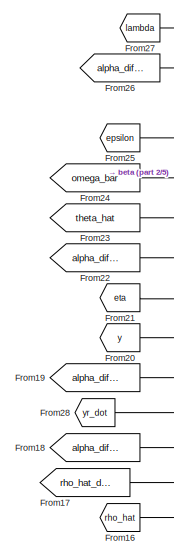
[diagram: root canvas - part 1/5, top left region]
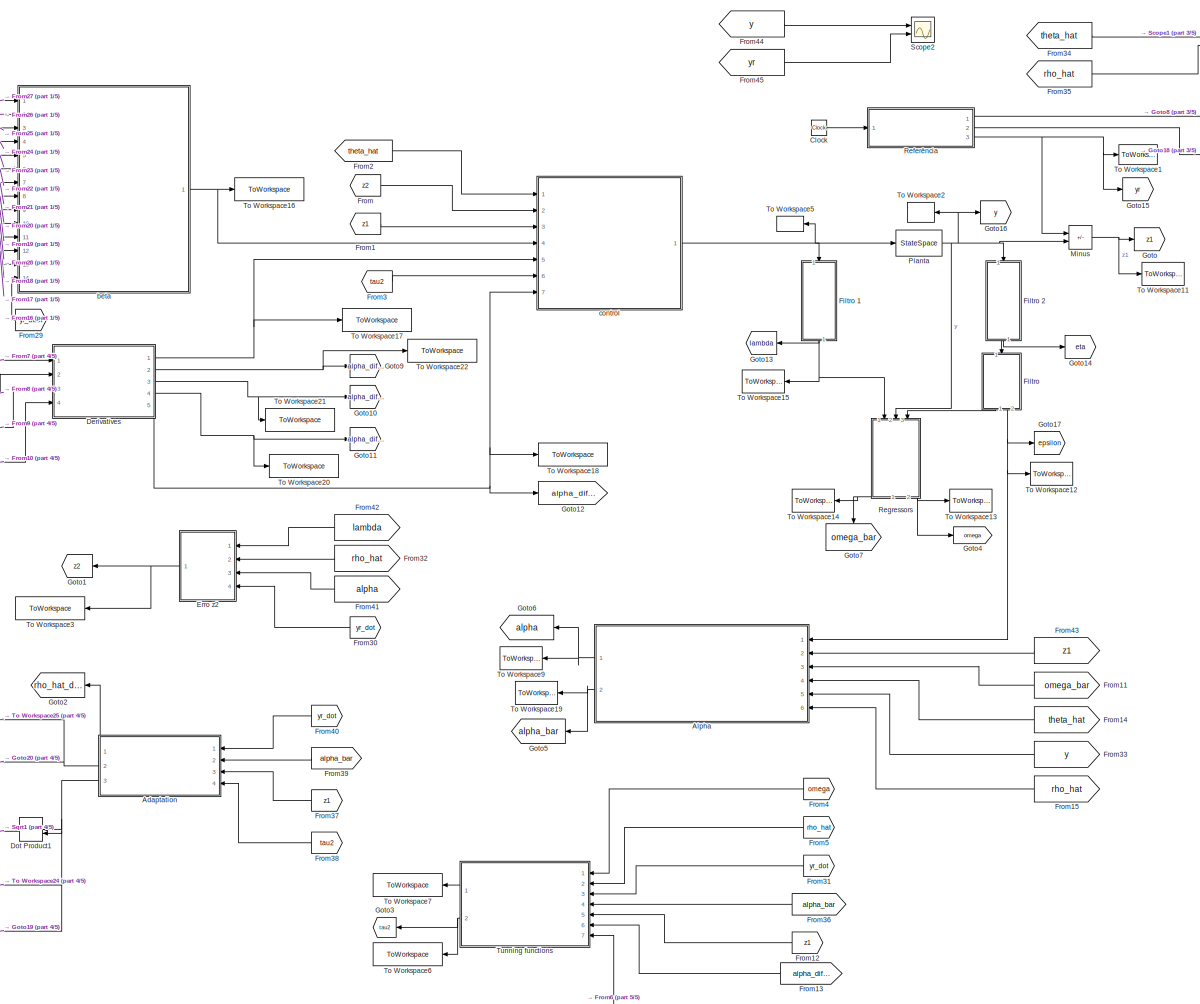
[diagram: root canvas - part 2/5, center side, full height]
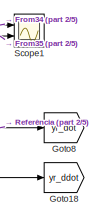
[diagram: root canvas - part 3/5, top right region]
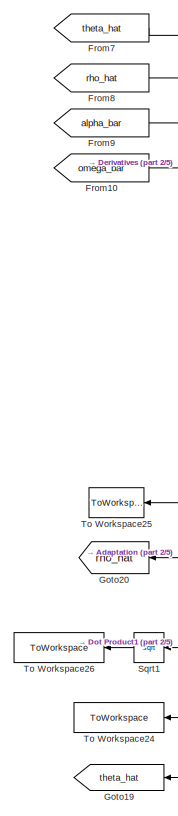
[diagram: root canvas - part 4/5, middle left region]
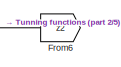
[diagram: root canvas - part 5/5, bottom right region]
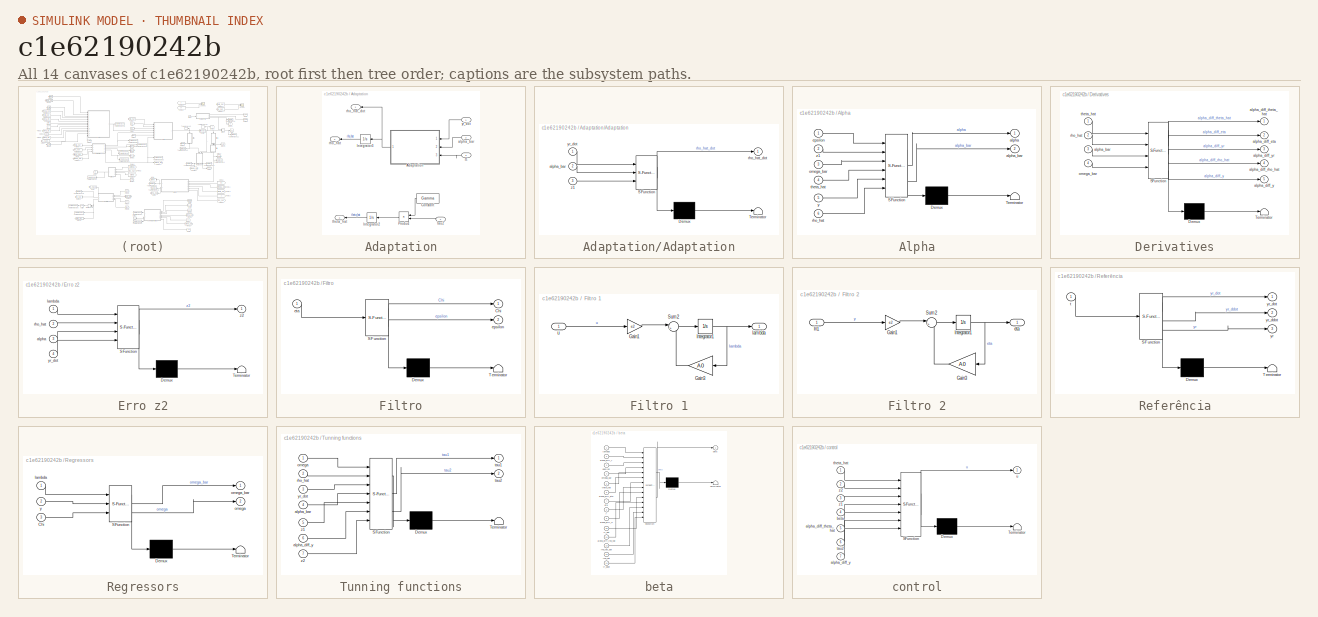
[diagram: thumbnail index - all 14 canvases of the model, root first then tree order]
MODEL slx_c1e62190242b
KIND model
CONFIG AbsTol = auto
CONFIG EnableMultiTasking = off
CONFIG FixedStep = 1e-3
CONFIG MaxStep = auto
CONFIG MinStep = auto
CONFIG RelTol = 1e-3
CONFIG SampleTimeConstraint = Unconstrained
CONFIG SolverName = VariableStepAuto
CONFIG StartTime = 0.0
CONFIG StopTime = 40
BLOCK [SubSystem] Adaptation
  Ports = [4, 3]
  RequestExecContextInheritance = off
BLOCK [SubSystem] Adaptation/Adaptation
  ErrorFcn = Stateflow.Translate.translate
  PermitHierarchicalResolution = ExplicitOnly
  Ports = [3, 1]
  RequestExecContextInheritance = off
  SFBlockType = MATLAB Function
  TreatAsAtomicUnit = on
BLOCK [Demux] Adaptation/Adaptation/ Demux 
  Outputs = 1
  Ports = [1, 1]
BLOCK [S-Function] Adaptation/Adaptation/ SFunction 
  EnableBusSupport = on
  FunctionName = sf_sfun
  Parameters = gamma,kp
  PortCounts = [3 2]
  Ports = [3, 2]
  SFcnIsStateOwnerBlock = off
  SFunctionDeploymentMode = off
  Tag = Stateflow S-Function 12
BLOCK [Terminator] Adaptation/Adaptation/ Terminator 
BLOCK [Inport] Adaptation/Adaptation/alpha_bar
  Port = 2
BLOCK [Outport] Adaptation/Adaptation/rho_hat_dot
BLOCK [Inport] Adaptation/Adaptation/yr_dot
BLOCK [Inport] Adaptation/Adaptation/z1
  Port = 3
BLOCK [Constant] Adaptation/Constant
  Value = Gamma
  VectorParams1D = off
BLOCK [Integrator] Adaptation/Integrator2
  InitialCondition = theta0
  Ports = [1, 1]
BLOCK [Integrator] Adaptation/Integrator3
  InitialCondition = rho0
  Ports = [1, 1]
BLOCK [Product] Adaptation/Product
  Multiplication = Matrix(*)
  Ports = [2, 1]
BLOCK [Inport] Adaptation/alpha_bar
  Port = 2
BLOCK [Outport] Adaptation/rho_hat
  Port = 2
BLOCK [Outport] Adaptation/rho_hat_dot
BLOCK [Inport] Adaptation/tau2
  Port = 4
BLOCK [Outport] Adaptation/theta_hat
  Port = 3
BLOCK [Inport] Adaptation/yr_dot
BLOCK [Inport] Adaptation/z1
  Port = 3
BLOCK [SubSystem] Alpha
  ErrorFcn = Stateflow.Translate.translate
  PermitHierarchicalResolution = ExplicitOnly
  Ports = [6, 2]
  RequestExecContextInheritance = off
  SFBlockType = MATLAB Function
  TreatAsAtomicUnit = on
BLOCK [Demux] Alpha/ Demux 
  Outputs = 1
  Ports = [1, 1]
BLOCK [S-Function] Alpha/ SFunction 
  EnableBusSupport = on
  FunctionName = sf_sfun
  Parameters = c1,d1
  PortCounts = [6 3]
  Ports = [6, 3]
  SFcnIsStateOwnerBlock = off
  SFunctionDeploymentMode = off
  Tag = Stateflow S-Function 1
BLOCK [Terminator] Alpha/ Terminator 
BLOCK [Outport] Alpha/alpha
BLOCK [Outport] Alpha/alpha_bar
  Port = 2
BLOCK [Inport] Alpha/epsilon
BLOCK [Inport] Alpha/omega_bar
  Port = 3
BLOCK [Inport] Alpha/rho_hat
  Port = 6
BLOCK [Inport] Alpha/theta_hat
  Port = 4
BLOCK [Inport] Alpha/y
  Port = 5
BLOCK [Inport] Alpha/z1
  Port = 2
BLOCK [Clock] Clock
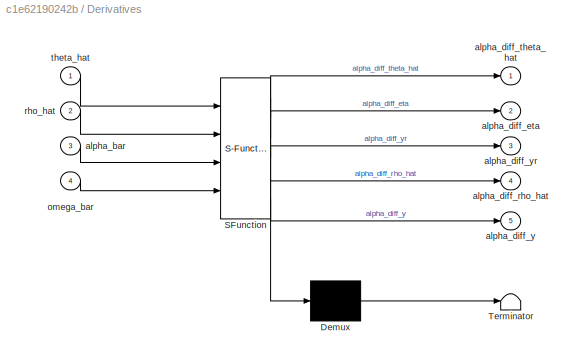
BLOCK [SubSystem] Derivatives
  ErrorFcn = Stateflow.Translate.translate
  PermitHierarchicalResolution = ExplicitOnly
  Ports = [4, 5]
  RequestExecContextInheritance = off
  SFBlockType = MATLAB Function
  TreatAsAtomicUnit = on
BLOCK [Demux] Derivatives/ Demux 
  Outputs = 1
  Ports = [1, 1]
BLOCK [S-Function] Derivatives/ SFunction 
  EnableBusSupport = on
  FunctionName = sf_sfun
  Parameters = A0,c1,d1,e2
  PortCounts = [4 6]
  Ports = [4, 6]
  SFcnIsStateOwnerBlock = off
  SFunctionDeploymentMode = off
  Tag = Stateflow S-Function 5
BLOCK [Terminator] Derivatives/ Terminator 
BLOCK [Inport] Derivatives/alpha_bar
  Port = 3
BLOCK [Outport] Derivatives/alpha_diff_eta
  Port = 2
BLOCK [Outport] Derivatives/alpha_diff_rho_hat
  Port = 4
BLOCK [Outport] Derivatives/alpha_diff_theta_hat
BLOCK [Outport] Derivatives/alpha_diff_y
  Port = 5
BLOCK [Outport] Derivatives/alpha_diff_yr
  Port = 3
BLOCK [Inport] Derivatives/omega_bar
  Port = 4
BLOCK [Inport] Derivatives/rho_hat
  Port = 2
BLOCK [Inport] Derivatives/theta_hat
BLOCK [DotProduct] Dot Product1
  OutDataTypeStr = Inherit: Inherit via internal rule
BLOCK [SubSystem] Erro z2
  ErrorFcn = Stateflow.Translate.translate
  PermitHierarchicalResolution = ExplicitOnly
  Ports = [4, 1]
  RequestExecContextInheritance = off
  SFBlockType = MATLAB Function
  TreatAsAtomicUnit = on
BLOCK [Demux] Erro z2/ Demux 
  Outputs = 1
  Ports = [1, 1]
BLOCK [S-Function] Erro z2/ SFunction 
  EnableBusSupport = on
  FunctionName = sf_sfun
  PortCounts = [4 2]
  Ports = [4, 2]
  SFcnIsStateOwnerBlock = off
  SFunctionDeploymentMode = off
  Tag = Stateflow S-Function 11
BLOCK [Terminator] Erro z2/ Terminator 
BLOCK [Inport] Erro z2/alpha
  Port = 3
BLOCK [Inport] Erro z2/lambda
BLOCK [Inport] Erro z2/rho_hat
  Port = 2
BLOCK [Inport] Erro z2/yr_dot
  Port = 4
BLOCK [Outport] Erro z2/z2
BLOCK [SubSystem] Filtro
  ErrorFcn = Stateflow.Translate.translate
  NameLocation = left
  PermitHierarchicalResolution = ExplicitOnly
  Ports = [1, 2]
  RequestExecContextInheritance = off
  SFBlockType = MATLAB Function
  TreatAsAtomicUnit = on
BLOCK [SubSystem] Filtro 1
  NameLocation = left
  Ports = [1, 1]
  RequestExecContextInheritance = off
BLOCK [Gain] Filtro 1/Gain1
  Gain = e2
BLOCK [Gain] Filtro 1/Gain3
  Gain = A0
  Multiplication = Matrix(K*u) (u vector)
BLOCK [Integrator] Filtro 1/Integrator1
  Ports = [1, 1]
BLOCK [Sum] Filtro 1/Sum2
  Inputs = |++
  Ports = [2, 1]
BLOCK [Outport] Filtro 1/lambda
  IconDisplay = Signal name
BLOCK [Inport] Filtro 1/u
  IconDisplay = Signal name
BLOCK [SubSystem] Filtro 2
  NameLocation = left
  Ports = [1, 1]
  RequestExecContextInheritance = off
BLOCK [Gain] Filtro 2/Gain1
  Gain = e2
BLOCK [Gain] Filtro 2/Gain3
  Gain = A0
  Multiplication = Matrix(K*u) (u vector)
BLOCK [Inport] Filtro 2/In1
  IconDisplay = Signal name
BLOCK [Integrator] Filtro 2/Integrator1
  Ports = [1, 1]
BLOCK [Sum] Filtro 2/Sum2
  Inputs = |++
  Ports = [2, 1]
BLOCK [Outport] Filtro 2/eta
  IconDisplay = Signal name
BLOCK [Demux] Filtro/ Demux 
  Outputs = 1
  Ports = [1, 1]
BLOCK [S-Function] Filtro/ SFunction 
  EnableBusSupport = on
  FunctionName = sf_sfun
  Parameters = A0
  PortCounts = [1 3]
  Ports = [1, 3]
  SFcnIsStateOwnerBlock = off
  SFunctionDeploymentMode = off
  Tag = Stateflow S-Function 3
BLOCK [Terminator] Filtro/ Terminator 
BLOCK [Outport] Filtro/Chi
BLOCK [Outport] Filtro/epsilon
  Port = 2
BLOCK [Inport] Filtro/eta
BLOCK [From] From
  GotoTag = z2
BLOCK [From] From1
  GotoTag = z1
BLOCK [From] From10
  GotoTag = omega_bar
BLOCK [From] From11
  GotoTag = omega_bar
  NameLocation = top
BLOCK [From] From12
  GotoTag = z1
  NameLocation = top
BLOCK [From] From13
  GotoTag = alpha_diff_y
  NameLocation = top
BLOCK [From] From14
  GotoTag = theta_hat
  NameLocation = top
BLOCK [From] From15
  GotoTag = rho_hat
  NameLocation = top
BLOCK [From] From16
  GotoTag = rho_hat
BLOCK [From] From17
  GotoTag = rho_hat_dot
BLOCK [From] From18
  GotoTag = alpha_diff_rho_hat
BLOCK [From] From19
  GotoTag = alpha_diff_yr
BLOCK [From] From2
  GotoTag = theta_hat
BLOCK [From] From20
  GotoTag = y
BLOCK [From] From21
  GotoTag = eta
BLOCK [From] From22
  GotoTag = alpha_diff_eta
BLOCK [From] From23
  GotoTag = theta_hat
BLOCK [From] From24
  GotoTag = omega_bar
BLOCK [From] From25
  GotoTag = epsilon
BLOCK [From] From26
  GotoTag = alpha_diff_y
BLOCK [From] From27
  GotoTag = lambda
BLOCK [From] From28
  GotoTag = yr_dot
BLOCK [From] From29
  GotoTag = yr_ddot
BLOCK [From] From3
  GotoTag = tau2
BLOCK [From] From30
  GotoTag = yr_dot
BLOCK [From] From31
  GotoTag = yr_dot
BLOCK [From] From32
  GotoTag = rho_hat
  NameLocation = top
BLOCK [From] From33
  GotoTag = y
  NameLocation = top
BLOCK [From] From34
  GotoTag = theta_hat
  NameLocation = top
BLOCK [From] From35
  GotoTag = rho_hat
  NameLocation = top
BLOCK [From] From36
  GotoTag = alpha_bar
  NameLocation = top
BLOCK [From] From37
  GotoTag = z1
  NameLocation = top
BLOCK [From] From38
  GotoTag = tau2
  NameLocation = top
BLOCK [From] From39
  GotoTag = alpha_bar
  NameLocation = top
BLOCK [From] From4
  GotoTag = omega
  NameLocation = top
BLOCK [From] From40
  GotoTag = yr_dot
  NameLocation = top
BLOCK [From] From41
  GotoTag = alpha
  NameLocation = top
BLOCK [From] From42
  GotoTag = lambda
  NameLocation = top
BLOCK [From] From43
  GotoTag = z1
  NameLocation = top
BLOCK [From] From44
  GotoTag = y
  NameLocation = top
BLOCK [From] From45
  GotoTag = yr
  NameLocation = top
BLOCK [From] From5
  GotoTag = rho_hat
  NameLocation = top
BLOCK [From] From6
  GotoTag = z2
  NameLocation = top
BLOCK [From] From7
  GotoTag = theta_hat
BLOCK [From] From8
  GotoTag = rho_hat
BLOCK [From] From9
  GotoTag = alpha_bar
BLOCK [Goto] Goto
  GotoTag = z1
BLOCK [Goto] Goto1
  GotoTag = z2
BLOCK [Goto] Goto10
  GotoTag = alpha_diff_yr
BLOCK [Goto] Goto11
  GotoTag = alpha_diff_rho_hat
BLOCK [Goto] Goto12
  GotoTag = alpha_diff_y
BLOCK [Goto] Goto13
  GotoTag = lambda
BLOCK [Goto] Goto14
  GotoTag = eta
BLOCK [Goto] Goto15
  GotoTag = yr
BLOCK [Goto] Goto16
  GotoTag = y
BLOCK [Goto] Goto17
  GotoTag = epsilon
BLOCK [Goto] Goto18
  GotoTag = yr_ddot
BLOCK [Goto] Goto19
  GotoTag = theta_hat
BLOCK [Goto] Goto2
  GotoTag = rho_hat_dot
BLOCK [Goto] Goto20
  GotoTag = rho_hat
BLOCK [Goto] Goto3
  GotoTag = tau2
BLOCK [Goto] Goto4
  GotoTag = omega
  NameLocation = top
BLOCK [Goto] Goto5
  GotoTag = alpha_bar
BLOCK [Goto] Goto6
  GotoTag = alpha
BLOCK [Goto] Goto7
  GotoTag = omega_bar
  NameLocation = right
BLOCK [Goto] Goto8
  GotoTag = yr_dot
BLOCK [Goto] Goto9
  GotoTag = alpha_diff_eta
BLOCK [Sum] Minus
  IconShape = rectangular
  Inputs = -+
  Ports = [2, 1]
BLOCK [StateSpace] Planta
  A = ap
  B = bp
  C = cp
  D = dp
  InitialCondition = x0p
  Ports = [1, 1]
BLOCK [SubSystem] Referência
  ErrorFcn = Stateflow.Translate.translate
  NameLocation = top
  PermitHierarchicalResolution = ExplicitOnly
  Ports = [1, 3]
  RequestExecContextInheritance = off
  SFBlockType = MATLAB Function
  TreatAsAtomicUnit = on
BLOCK [Demux] Referência/ Demux 
  Outputs = 1
  Ports = [1, 1]
BLOCK [S-Function] Referência/ SFunction 
  EnableBusSupport = on
  FunctionName = sf_sfun
  PortCounts = [1 4]
  Ports = [1, 4]
  SFcnIsStateOwnerBlock = off
  SFunctionDeploymentMode = off
  Tag = Stateflow S-Function 10
BLOCK [Terminator] Referência/ Terminator 
BLOCK [Inport] Referência/t
BLOCK [Outport] Referência/yr
  Port = 3
BLOCK [Outport] Referência/yr_ddot
  Port = 2
BLOCK [Outport] Referência/yr_dot
BLOCK [SubSystem] Regressors
  ErrorFcn = Stateflow.Translate.translate
  NameLocation = left
  PermitHierarchicalResolution = ExplicitOnly
  Ports = [3, 2]
  RequestExecContextInheritance = off
  SFBlockType = MATLAB Function
  TreatAsAtomicUnit = on
BLOCK [Demux] Regressors/ Demux 
  Outputs = 1
  Ports = [1, 1]
BLOCK [S-Function] Regressors/ SFunction 
  EnableBusSupport = on
  FunctionName = sf_sfun
  Parameters = e1
  PortCounts = [3 3]
  Ports = [3, 3]
  SFcnIsStateOwnerBlock = off
  SFunctionDeploymentMode = off
  Tag = Stateflow S-Function 4
BLOCK [Terminator] Regressors/ Terminator 
BLOCK [Inport] Regressors/Chi
  Port = 3
BLOCK [Inport] Regressors/lambda
BLOCK [Outport] Regressors/omega
  Port = 2
BLOCK [Outport] Regressors/omega_bar
BLOCK [Inport] Regressors/y
  Port = 2
BLOCK [Scope] Scope1
  Floating = off
  NumInputPorts = 2
  Ports = [2]
  ScopeSpecificationString = Simulink.scopes.TimeScopeBlockCfg('CurrentConfiguration', extmgr.ConfigurationSet(extmgr.Configuration('Core','General UI',true),extmgr.Configuration('Core','Source UI',true),extmgr.Configuration('Sources','WiredSimulink',true),extmgr.Configuration('Visuals','Time Domain',true,'SerializedDisplays',{struct('MinYLimReal','-421.01901','MaxYLimReal','2288.84086','YLabelReal','','MinYLimMag',' 0.00000'...<+2021ch>
BLOCK [Scope] Scope2
  Floating = off
  NumInputPorts = 2
  Ports = [2]
  ScopeSpecificationString = Simulink.scopes.TimeScopeBlockCfg('CurrentConfiguration', extmgr.ConfigurationSet(extmgr.Configuration('Core','General UI',true),extmgr.Configuration('Core','Source UI',true),extmgr.Configuration('Sources','WiredSimulink',true,'DataLoggingVariableName','ScopeData1'),extmgr.Configuration('Visuals','Time Domain',true,'SerializedDisplays',{struct('MinYLimReal','-12.47673','MaxYLimReal','15.38187','YL...<+1443ch>
BLOCK [Sqrt] Sqrt1
BLOCK [ToWorkspace] To Workspace1
  FixptAsFi = on
  MaxDataPoints = inf
  Ports = [1]
  SampleTime = -1
  SaveFormat = Timeseries
  VariableName = yr
BLOCK [ToWorkspace] To Workspace11
  FixptAsFi = on
  MaxDataPoints = inf
  Ports = [1]
  SampleTime = -1
  SaveFormat = Timeseries
  VariableName = z1
BLOCK [ToWorkspace] To Workspace12
  FixptAsFi = on
  MaxDataPoints = inf
  Ports = [1]
  SampleTime = -1
  SaveFormat = Timeseries
  VariableName = epsilon
BLOCK [ToWorkspace] To Workspace13
  FixptAsFi = on
  MaxDataPoints = inf
  Ports = [1]
  SampleTime = -1
  SaveFormat = Timeseries
  VariableName = omega
BLOCK [ToWorkspace] To Workspace14
  FixptAsFi = on
  MaxDataPoints = inf
  Ports = [1]
  SampleTime = -1
  SaveFormat = Timeseries
  VariableName = omega_bar
BLOCK [ToWorkspace] To Workspace15
  FixptAsFi = on
  MaxDataPoints = inf
  Ports = [1]
  SampleTime = -1
  SaveFormat = Timeseries
  VariableName = lambda
BLOCK [ToWorkspace] To Workspace16
  FixptAsFi = on
  MaxDataPoints = inf
  Ports = [1]
  SampleTime = -1
  SaveFormat = Timeseries
  VariableName = beta
BLOCK [ToWorkspace] To Workspace17
  FixptAsFi = on
  MaxDataPoints = inf
  Ports = [1]
  SampleTime = -1
  SaveFormat = Timeseries
  VariableName = alpha_diff_theta_hat
BLOCK [ToWorkspace] To Workspace18
  FixptAsFi = on
  MaxDataPoints = inf
  Ports = [1]
  SampleTime = -1
  SaveFormat = Timeseries
  VariableName = alpha_diff_y
BLOCK [ToWorkspace] To Workspace19
  FixptAsFi = on
  MaxDataPoints = inf
  Ports = [1]
  SampleTime = -1
  SaveFormat = Timeseries
  VariableName = alpha_bar
BLOCK [ToWorkspace] To Workspace2
  FixptAsFi = on
  MaxDataPoints = inf
  Ports = [1]
  SampleTime = -1
  SaveFormat = Timeseries
  VariableName = y
BLOCK [ToWorkspace] To Workspace20
  FixptAsFi = on
  MaxDataPoints = inf
  Ports = [1]
  SampleTime = -1
  SaveFormat = Timeseries
  VariableName = alpha_diff_rho_hat
BLOCK [ToWorkspace] To Workspace21
  FixptAsFi = on
  MaxDataPoints = inf
  Ports = [1]
  SampleTime = -1
  SaveFormat = Timeseries
  VariableName = alpha_diff_yr
BLOCK [ToWorkspace] To Workspace22
  FixptAsFi = on
  MaxDataPoints = inf
  Ports = [1]
  SampleTime = -1
  SaveFormat = Timeseries
  VariableName = alpha_diff_eta
BLOCK [ToWorkspace] To Workspace24
  FixptAsFi = on
  MaxDataPoints = inf
  Ports = [1]
  SampleTime = -1
  SaveFormat = Timeseries
  VariableName = theta_hat
BLOCK [ToWorkspace] To Workspace25
  FixptAsFi = on
  MaxDataPoints = inf
  Ports = [1]
  SampleTime = -1
  SaveFormat = Timeseries
  VariableName = rho_hat
BLOCK [ToWorkspace] To Workspace26
  FixptAsFi = on
  MaxDataPoints = inf
  Ports = [1]
  SampleTime = -1
  SaveFormat = Timeseries
  VariableName = norm_theta_hat
BLOCK [ToWorkspace] To Workspace3
  FixptAsFi = on
  MaxDataPoints = inf
  Ports = [1]
  SampleTime = -1
  SaveFormat = Timeseries
  VariableName = z2
BLOCK [ToWorkspace] To Workspace5
  FixptAsFi = on
  MaxDataPoints = inf
  Ports = [1]
  SampleTime = -1
  SaveFormat = Timeseries
  VariableName = u
BLOCK [ToWorkspace] To Workspace6
  FixptAsFi = on
  MaxDataPoints = inf
  Ports = [1]
  SampleTime = -1
  SaveFormat = Timeseries
  VariableName = tau2
BLOCK [ToWorkspace] To Workspace7
  FixptAsFi = on
  MaxDataPoints = inf
  Ports = [1]
  SampleTime = -1
  SaveFormat = Timeseries
  VariableName = tau1
BLOCK [ToWorkspace] To Workspace9
  FixptAsFi = on
  MaxDataPoints = inf
  Ports = [1]
  SampleTime = -1
  SaveFormat = Timeseries
  VariableName = alpha
BLOCK [SubSystem] Tunning functions
  ErrorFcn = Stateflow.Translate.translate
  PermitHierarchicalResolution = ExplicitOnly
  Ports = [7, 2]
  RequestExecContextInheritance = off
  SFBlockType = MATLAB Function
  TreatAsAtomicUnit = on
BLOCK [Demux] Tunning functions/ Demux 
  Outputs = 1
  Ports = [1, 1]
BLOCK [S-Function] Tunning functions/ SFunction 
  EnableBusSupport = on
  FunctionName = sf_sfun
  Parameters = e1_tau
  PortCounts = [7 3]
  Ports = [7, 3]
  SFcnIsStateOwnerBlock = off
  SFunctionDeploymentMode = off
  Tag = Stateflow S-Function 9
BLOCK [Terminator] Tunning functions/ Terminator 
BLOCK [Inport] Tunning functions/alpha_bar
  Port = 4
BLOCK [Inport] Tunning functions/alpha_diff_y
  Port = 6
BLOCK [Inport] Tunning functions/omega
BLOCK [Inport] Tunning functions/rho_hat
  Port = 2
BLOCK [Outport] Tunning functions/tau1
BLOCK [Outport] Tunning functions/tau2
  Port = 2
BLOCK [Inport] Tunning functions/yr_dot
  Port = 3
BLOCK [Inport] Tunning functions/z1
  Port = 5
BLOCK [Inport] Tunning functions/z2
  Port = 7
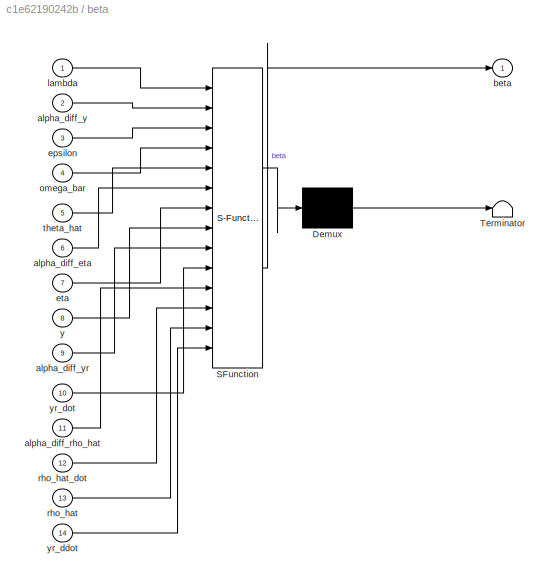
BLOCK [SubSystem] beta
  ErrorFcn = Stateflow.Translate.translate
  PermitHierarchicalResolution = ExplicitOnly
  Ports = [14, 1]
  RequestExecContextInheritance = off
  SFBlockType = MATLAB Function
  TreatAsAtomicUnit = on
BLOCK [Demux] beta/ Demux 
  Outputs = 1
  Ports = [1, 1]
BLOCK [S-Function] beta/ SFunction 
  EnableBusSupport = on
  FunctionName = sf_sfun
  Parameters = A0,e2,k
  PortCounts = [14 2]
  Ports = [14, 2]
  SFcnIsStateOwnerBlock = off
  SFunctionDeploymentMode = off
  Tag = Stateflow S-Function 6
BLOCK [Terminator] beta/ Terminator 
BLOCK [Inport] beta/alpha_diff_eta
  Port = 6
BLOCK [Inport] beta/alpha_diff_rho_hat
  Port = 11
BLOCK [Inport] beta/alpha_diff_y
  Port = 2
BLOCK [Inport] beta/alpha_diff_yr
  Port = 9
BLOCK [Outport] beta/beta
BLOCK [Inport] beta/epsilon
  Port = 3
BLOCK [Inport] beta/eta
  Port = 7
BLOCK [Inport] beta/lambda
BLOCK [Inport] beta/omega_bar
  Port = 4
BLOCK [Inport] beta/rho_hat
  Port = 13
BLOCK [Inport] beta/rho_hat_dot
  Port = 12
BLOCK [Inport] beta/theta_hat
  Port = 5
BLOCK [Inport] beta/y
  Port = 8
BLOCK [Inport] beta/yr_ddot
  Port = 14
BLOCK [Inport] beta/yr_dot
  Port = 10
BLOCK [SubSystem] control
  ErrorFcn = Stateflow.Translate.translate
  PermitHierarchicalResolution = ExplicitOnly
  Ports = [7, 1]
  RequestExecContextInheritance = off
  SFBlockType = MATLAB Function
  TreatAsAtomicUnit = on
BLOCK [Demux] control/ Demux 
  Outputs = 1
  Ports = [1, 1]
BLOCK [S-Function] control/ SFunction 
  EnableBusSupport = on
  FunctionName = sf_sfun
  Parameters = Gamma,c2,d2
  PortCounts = [7 2]
  Ports = [7, 2]
  SFcnIsStateOwnerBlock = off
  SFunctionDeploymentMode = off
  Tag = Stateflow S-Function 8
BLOCK [Terminator] control/ Terminator 
BLOCK [Inport] control/alpha_diff_theta_hat
  Port = 5
BLOCK [Inport] control/alpha_diff_y
  Port = 7
BLOCK [Inport] control/beta
  Port = 4
BLOCK [Inport] control/tau2
  Port = 6
BLOCK [Inport] control/theta_hat
BLOCK [Outport] control/u
BLOCK [Inport] control/z1
  Port = 3
BLOCK [Inport] control/z2
  Port = 2
NET Adaptation/Adaptation:1 -> Adaptation/Integrator3:1, Adaptation/rho_hat_dot:1
LINE Adaptation/Constant:1 -> Adaptation/Product:1
LINE Adaptation/Integrator2:1 -> Adaptation/theta_hat:1
LINE Adaptation/Integrator3:1 -> Adaptation/rho_hat:1
LINE Adaptation/Product:1 -> Adaptation/Integrator2:1
LINE Adaptation/alpha_bar:1 -> Adaptation/Adaptation:2
LINE Adaptation/tau2:1 -> Adaptation/Product:2
LINE Adaptation/yr_dot:1 -> Adaptation/Adaptation:1
LINE Adaptation/z1:1 -> Adaptation/Adaptation:3
LINE Adaptation:1 -> Goto2:1
NET Adaptation:2 -> Goto20:1, To Workspace25:1
NET Adaptation:3 -> Dot Product1:1, Dot Product1:2, Goto19:1, To Workspace24:1
NET Alpha:1 -> Goto6:1, To Workspace9:1
NET Alpha:2 -> Goto5:1, To Workspace19:1
LINE Clock:1 -> Referência:1
NET Derivatives:1 -> To Workspace17:1, control:5
NET Derivatives:2 -> Goto9:1, To Workspace22:1
NET Derivatives:3 -> Goto10:1, To Workspace21:1
NET Derivatives:4 -> Goto11:1, To Workspace20:1
NET Derivatives:5 -> Goto12:1, To Workspace18:1, control:7
LINE Dot Product1:1 -> Sqrt1:1
NET Erro z2:1 -> Goto1:1, To Workspace3:1
LINE Filtro 1/Gain1:1 -> Filtro 1/Sum2:1
LINE Filtro 1/Gain3:1 -> Filtro 1/Sum2:2
NET Filtro 1/Integrator1:1 -> Filtro 1/Gain3:1, Filtro 1/lambda:1
LINE Filtro 1/Sum2:1 -> Filtro 1/Integrator1:1
LINE Filtro 1/u:1 -> Filtro 1/Gain1:1
NET Filtro 1:1 -> Goto13:1, Regressors:1, To Workspace15:1
LINE Filtro 2/Gain1:1 -> Filtro 2/Sum2:1
LINE Filtro 2/Gain3:1 -> Filtro 2/Sum2:2
LINE Filtro 2/In1:1 -> Filtro 2/Gain1:1
NET Filtro 2/Integrator1:1 -> Filtro 2/Gain3:1, Filtro 2/eta:1
LINE Filtro 2/Sum2:1 -> Filtro 2/Integrator1:1
NET Filtro 2:1 -> Filtro:1, Goto14:1
LINE Filtro:1 -> Regressors:3
NET Filtro:2 -> Alpha:1, Goto17:1, To Workspace12:1
LINE From10:1 -> Derivatives:4
LINE From11:1 -> Alpha:3
LINE From12:1 -> Tunning functions:5
LINE From13:1 -> Tunning functions:6
LINE From14:1 -> Alpha:4
LINE From15:1 -> Alpha:6
LINE From16:1 -> beta:13
LINE From17:1 -> beta:12
LINE From18:1 -> beta:11
LINE From19:1 -> beta:9
LINE From1:1 -> control:3
LINE From20:1 -> beta:8
LINE From21:1 -> beta:7
LINE From22:1 -> beta:6
LINE From23:1 -> beta:5
LINE From24:1 -> beta:4
LINE From25:1 -> beta:3
LINE From26:1 -> beta:2
LINE From27:1 -> beta:1
LINE From28:1 -> beta:10
LINE From29:1 -> beta:14
LINE From2:1 -> control:1
LINE From30:1 -> Erro z2:4
LINE From31:1 -> Tunning functions:3
LINE From32:1 -> Erro z2:2
LINE From33:1 -> Alpha:5
LINE From34:1 -> Scope1:1
LINE From35:1 -> Scope1:2
LINE From36:1 -> Tunning functions:4
LINE From37:1 -> Adaptation:3
LINE From38:1 -> Adaptation:4
LINE From39:1 -> Adaptation:2
LINE From3:1 -> control:6
LINE From40:1 -> Adaptation:1
LINE From41:1 -> Erro z2:3
LINE From42:1 -> Erro z2:1
LINE From43:1 -> Alpha:2
LINE From44:1 -> Scope2:1
LINE From45:1 -> Scope2:2
LINE From4:1 -> Tunning functions:1
LINE From5:1 -> Tunning functions:2
LINE From6:1 -> Tunning functions:7
LINE From7:1 -> Derivatives:1
LINE From8:1 -> Derivatives:2
LINE From9:1 -> Derivatives:3
LINE From:1 -> control:2
NET Minus:1 -> Goto:1, To Workspace11:1
NET Planta:1 -> Filtro 2:1, Goto16:1, Minus:2, Regressors:2, To Workspace2:1
LINE Referência:1 -> Goto8:1
LINE Referência:2 -> Goto18:1
NET Referência:3 -> Goto15:1, Minus:1, To Workspace1:1
NET Regressors:1 -> Goto7:1, To Workspace14:1
NET Regressors:2 -> Goto4:1, To Workspace13:1
LINE Sqrt1:1 -> To Workspace26:1
LINE Tunning functions:1 -> To Workspace7:1
NET Tunning functions:2 -> Goto3:1, To Workspace6:1
NET beta:1 -> To Workspace16:1, control:4
NET control:1 -> Filtro 1:1, Planta:1, To Workspace5:1
note: NET lines group one-source signal fan-out (src -> all destinations, sorted); 1:1 wires keep LINE
CHART control states=1 transitions=1
  STATE_LABEL 'eML_blk_kernel()'
  STATE_LABEL 'SCRIPT:\nfunction u = control(theta_hat, z2, z1, beta, alpha_diff_theta_hat, tau2, alpha_diff_y, c2, d2, Gamma)\n    kp_hat = theta_hat(1);\n    u = -c2*z2;\n    u = u - kp_hat*z1;\n    u = u + beta;\n    u = u + alpha_diff_theta_hat*Gamma*tau2;\n    u = u - d2*(alpha_diff_y^2)*z2;\n            '
CHART Tunning functions states=1 transitions=1
  STATE_LABEL 'eML_blk_kernel()'
  STATE_LABEL 'SCRIPT:\nfunction [tau1, tau2] = tunning(omega, rho_hat, yr_dot, alpha_bar, z1, alpha_diff_y, z2, e1_tau)\n    omega_0 = omega-(rho_hat*(yr_dot+alpha_bar)*e1_tau);\n    tau1 = omega_0*z1;\n    tau2 = tau1 - (alpha_diff_y*omega*z2);\n'
CHART Referência states=1 transitions=1
  STATE_LABEL 'eML_blk_kernel()'
  STATE_LABEL 'SCRIPT:\nfunction [yr_dot, yr_ddot, yr] = reference(t)\n    yr = 2 + 5*sin(t) + 5*sin(3.7*t);\n    yr_dot = 5*cos(t) + 5*3.7*cos(3.7*t);\n    yr_ddot = -5*sin(t) - 5*3.7*3.7*sin(3.7*t);\n'
CHART Erro z2 states=1 transitions=1
  STATE_LABEL 'eML_blk_kernel()'
  STATE_LABEL 'SCRIPT:\nfunction z2 = erro(lambda, rho_hat, alpha, yr_dot)\n    z2 = lambda(2)-rho_hat*yr_dot - alpha;\n'
CHART Adaptation/Adaptation states=1 transitions=1
  STATE_LABEL 'eML_blk_kernel()'
  STATE_LABEL 'SCRIPT:\nfunction rho_hat_dot  = adaptation(yr_dot, alpha_bar, z1, gamma, kp)\n    rho_hat_dot = -gamma*sign(kp)*(yr_dot+alpha_bar)*z1;\n'
CHART Alpha states=1 transitions=1
  STATE_LABEL 'eML_blk_kernel()'
  STATE_LABEL 'SCRIPT:\nfunction [alpha, alpha_bar] = alpha(epsilon,z1, omega_bar, theta_hat, y, rho_hat, c1, d1)\n    alpha_bar = -(c1*z1)-(d1*z1)-epsilon(2)-(dot(omega_bar, theta_hat));\n    alpha = rho_hat*alpha_bar;\n'
CHART Filtro states=1 transitions=1
  STATE_LABEL 'eML_blk_kernel()'
  STATE_LABEL 'SCRIPT:\nfunction [Chi, epsilon] = filtro(eta, A0)\n    Chi = -[A0*eta eta];\n    epsilon = -A0*A0*eta;'
CHART Regressors states=1 transitions=1
  STATE_LABEL 'eML_blk_kernel()'
  STATE_LABEL "SCRIPT:\nfunction [omega_bar, omega] = fcn(lambda, y, Chi, e1)\naux = Chi(2,:) - y*e1';\nomega_bar = [0 aux]';\nomega = [lambda(2) aux]';\n"
CHART Derivatives states=1 transitions=1
  STATE_LABEL 'eML_blk_kernel()'
  STATE_LABEL "SCRIPT:\nfunction [alpha_diff_theta_hat, alpha_diff_eta, alpha_diff_yr, alpha_diff_rho_hat, alpha_diff_y] = derivate(theta_hat, rho_hat, alpha_bar, c1, d1, omega_bar, e2, A0)\n    a1_hat = theta_hat(2);\n    a0_hat = theta_hat(3);\n    alpha_diff_y = rho_hat*(-c1-d1+a1_hat);\n    A02 = A0^2;\n    alpha_diff_eta = rho_hat*(-A02(2,:) + a1_hat*A0(2,:) + a0_hat*e2');\n    alpha_diff_yr = rho_hat*(c1+d1);\n   ...<+83ch>"
CHART beta states=1 transitions=1
  STATE_LABEL 'eML_blk_kernel()'
  STATE_LABEL 'SCRIPT:\nfunction beta = beta(lambda, alpha_diff_y, epsilon, omega_bar, theta_hat, alpha_diff_eta, eta, y, alpha_diff_yr, yr_dot, alpha_diff_rho_hat, rho_hat_dot, rho_hat, yr_ddot, k, e2, A0)\n    beta = k(2)*lambda(1);\n    beta = beta + alpha_diff_y*(epsilon(2) + dot(omega_bar,theta_hat));\n    beta = beta + alpha_diff_eta*(A0*eta + e2*y);\n    beta = beta + alpha_diff_yr*yr_dot;\n    beta = beta + rh...<+74ch>'
CHART  states=0 transitions=0
CHART  states=0 transitions=0
CHART  states=0 transitions=0
CHART  states=0 transitions=0
CHART  states=0 transitions=0
CHART  states=0 transitions=0
CHART  states=0 transitions=0
CHART  states=0 transitions=0
CHART  states=0 transitions=0
CHART  states=0 transitions=0
